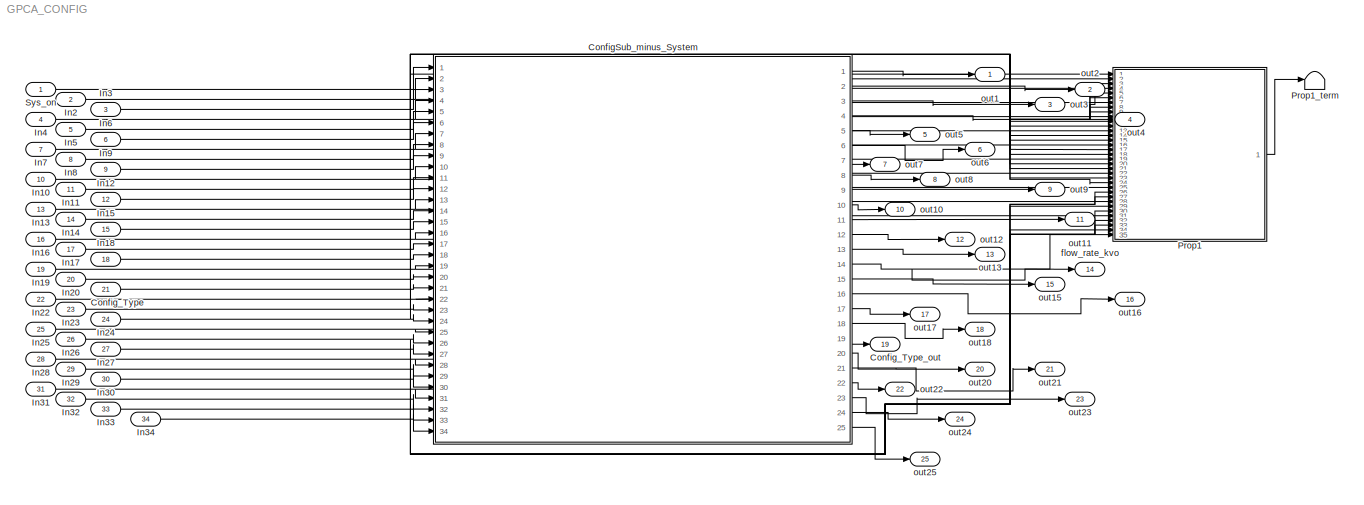
MODEL GPCA_CONFIG
KIND model
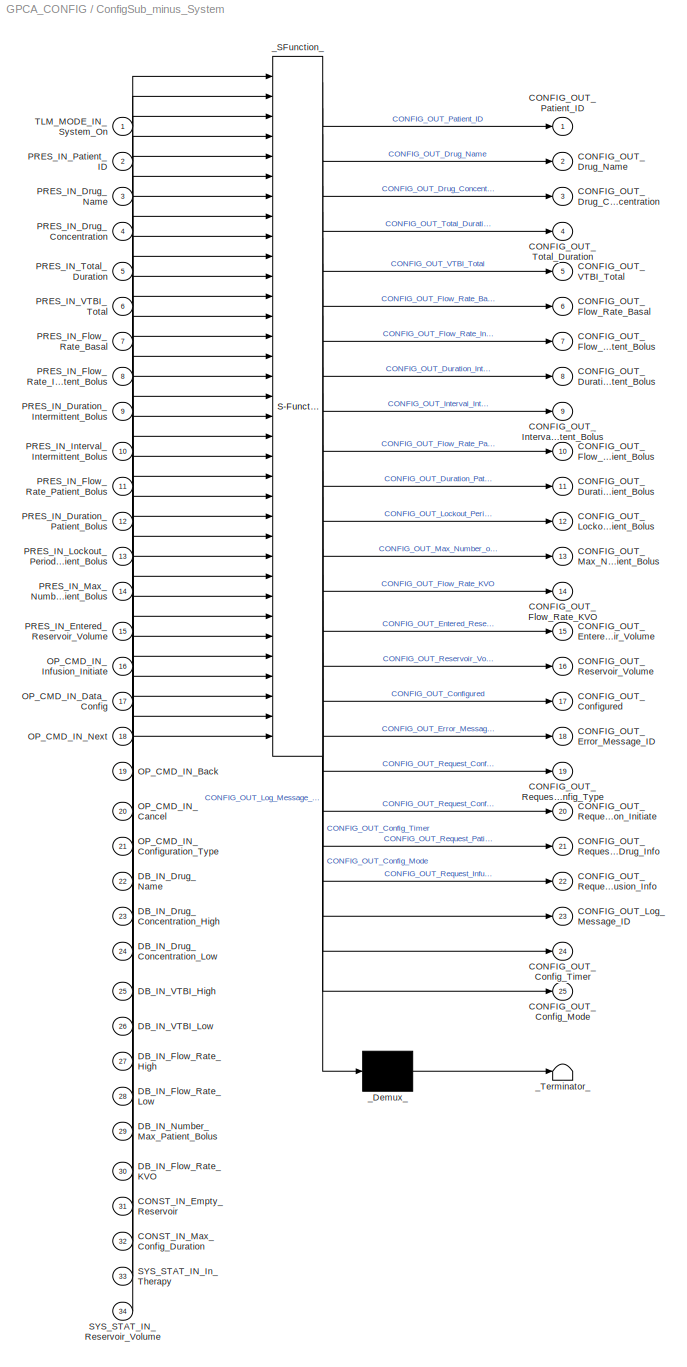
BLOCK [SubSystem] ConfigSub_minus_System
  ErrorFcn = Stateflow.Translate.translate
  PermitHierarchicalResolution = ExplicitOnly
  Ports = [34, 25]
  RequestExecContextInheritance = off
  SFBlockType = Chart
  SID = 35
  TreatAsAtomicUnit = on
  Variant = off
BLOCK [Outport] ConfigSub_minus_System/CONFIG_OUT_Config_Mode
  IconDisplay = Port number
  Port = 25
  SID = 35::384
BLOCK [Outport] ConfigSub_minus_System/CONFIG_OUT_Config_Timer
  IconDisplay = Port number
  Port = 24
  SID = 35::382
BLOCK [Outport] ConfigSub_minus_System/CONFIG_OUT_Configured
  IconDisplay = Port number
  Port = 17
  SID = 35::303
BLOCK [Outport] ConfigSub_minus_System/CONFIG_OUT_Drug_Concentration
  IconDisplay = Port number
  Port = 3
  SID = 35::351
BLOCK [Outport] ConfigSub_minus_System/CONFIG_OUT_Drug_Name
  IconDisplay = Port number
  Port = 2
  SID = 35::352
BLOCK [Outport] ConfigSub_minus_System/CONFIG_OUT_Duration_Intermittent_Bolus
  IconDisplay = Port number
  Port = 8
  SID = 35::367
BLOCK [Outport] ConfigSub_minus_System/CONFIG_OUT_Duration_Patient_Bolus
  IconDisplay = Port number
  Port = 11
  SID = 35::371
BLOCK [Outport] ConfigSub_minus_System/CONFIG_OUT_Entered_Reservoir_Volume
  IconDisplay = Port number
  Port = 15
  SID = 35::348
BLOCK [Outport] ConfigSub_minus_System/CONFIG_OUT_Error_Message_ID
  IconDisplay = Port number
  Port = 18
  SID = 35::335
BLOCK [Outport] ConfigSub_minus_System/CONFIG_OUT_Flow_Rate_Basal
  IconDisplay = Port number
  Port = 6
  SID = 35::353
BLOCK [Outport] ConfigSub_minus_System/CONFIG_OUT_Flow_Rate_Intermittent_Bolus
  IconDisplay = Port number
  Port = 7
  SID = 35::364
BLOCK [Outport] ConfigSub_minus_System/CONFIG_OUT_Flow_Rate_KVO
  IconDisplay = Port number
  Port = 14
  SID = 35::365
BLOCK [Outport] ConfigSub_minus_System/CONFIG_OUT_Flow_Rate_Patient_Bolus
  IconDisplay = Port number
  Port = 10
  SID = 35::366
BLOCK [Outport] ConfigSub_minus_System/CONFIG_OUT_Interval_Intermittent_Bolus
  IconDisplay = Port number
  Port = 9
  SID = 35::368
BLOCK [Outport] ConfigSub_minus_System/CONFIG_OUT_Lockout_Period_Patient_Bolus
  IconDisplay = Port number
  Port = 12
  SID = 35::369
BLOCK [Outport] ConfigSub_minus_System/CONFIG_OUT_Log_Message_ID
  IconDisplay = Port number
  Port = 23
  SID = 35::372
BLOCK [Outport] ConfigSub_minus_System/CONFIG_OUT_Max_Number_of_Patient_Bolus
  IconDisplay = Port number
  Port = 13
  SID = 35::370
BLOCK [Outport] ConfigSub_minus_System/CONFIG_OUT_Patient_ID
  IconDisplay = Port number
  SID = 35::349
BLOCK [Outport] ConfigSub_minus_System/CONFIG_OUT_Request_Config_Type
  IconDisplay = Port number
  Port = 19
  SID = 35::336
BLOCK [Outport] ConfigSub_minus_System/CONFIG_OUT_Request_Confirm_Infusion_Initiate
  IconDisplay = Port number
  Port = 20
  SID = 35::337
BLOCK [Outport] ConfigSub_minus_System/CONFIG_OUT_Request_Infusion_Info
  IconDisplay = Port number
  Port = 22
  SID = 35::338
BLOCK [Outport] ConfigSub_minus_System/CONFIG_OUT_Request_Patient_Drug_Info
  IconDisplay = Port number
  Port = 21
  SID = 35::339
BLOCK [Outport] ConfigSub_minus_System/CONFIG_OUT_Reservoir_Volume
  IconDisplay = Port number
  Port = 16
  SID = 35::355
BLOCK [Outport] ConfigSub_minus_System/CONFIG_OUT_Total_Duration
  IconDisplay = Port number
  Port = 4
  SID = 35::354
BLOCK [Outport] ConfigSub_minus_System/CONFIG_OUT_VTBI_Total
  IconDisplay = Port number
  Port = 5
  SID = 35::363
BLOCK [Inport] ConfigSub_minus_System/CONST_IN_Empty_Reservoir
  IconDisplay = Port number
  Port = 31
  SID = 35::197
BLOCK [Inport] ConfigSub_minus_System/CONST_IN_Max_Config_Duration
  IconDisplay = Port number
  Port = 32
  SID = 35::380
BLOCK [Inport] ConfigSub_minus_System/DB_IN_Drug_Concentration_High
  IconDisplay = Port number
  Port = 23
  SID = 35::309
BLOCK [Inport] ConfigSub_minus_System/DB_IN_Drug_Concentration_Low
  IconDisplay = Port number
  Port = 24
  SID = 35::310
BLOCK [Inport] ConfigSub_minus_System/DB_IN_Drug_Name
  IconDisplay = Port number
  Port = 22
  SID = 35::312
BLOCK [Inport] ConfigSub_minus_System/DB_IN_Flow_Rate_High
  IconDisplay = Port number
  Port = 27
  SID = 35::218
BLOCK [Inport] ConfigSub_minus_System/DB_IN_Flow_Rate_KVO
  IconDisplay = Port number
  Port = 30
  SID = 35::356
BLOCK [Inport] ConfigSub_minus_System/DB_IN_Flow_Rate_Low
  IconDisplay = Port number
  Port = 28
  SID = 35::219
BLOCK [Inport] ConfigSub_minus_System/DB_IN_Number_Max_Patient_Bolus
  IconDisplay = Port number
  Port = 29
  SID = 35::327
BLOCK [Inport] ConfigSub_minus_System/DB_IN_VTBI_High
  IconDisplay = Port number
  Port = 25
  SID = 35::330
BLOCK [Inport] ConfigSub_minus_System/DB_IN_VTBI_Low
  IconDisplay = Port number
  Port = 26
  SID = 35::331
BLOCK [Inport] ConfigSub_minus_System/OP_CMD_IN_Back
  IconDisplay = Port number
  Port = 19
  SID = 35::304
BLOCK [Inport] ConfigSub_minus_System/OP_CMD_IN_Cancel
  IconDisplay = Port number
  Port = 20
  SID = 35::305
BLOCK [Inport] ConfigSub_minus_System/OP_CMD_IN_Configuration_Type
  IconDisplay = Port number
  Port = 21
  SID = 35::306
BLOCK [Inport] ConfigSub_minus_System/OP_CMD_IN_Data_Config
  IconDisplay = Port number
  Port = 17
  SID = 35::307
BLOCK [Inport] ConfigSub_minus_System/OP_CMD_IN_Infusion_Initiate
  IconDisplay = Port number
  Port = 16
  SID = 35::320
BLOCK [Inport] ConfigSub_minus_System/OP_CMD_IN_Next
  IconDisplay = Port number
  Port = 18
  SID = 35::325
BLOCK [Inport] ConfigSub_minus_System/PRES_IN_Drug_Concentration
  IconDisplay = Port number
  Port = 4
  SID = 35::308
BLOCK [Inport] ConfigSub_minus_System/PRES_IN_Drug_Name
  IconDisplay = Port number
  Port = 3
  SID = 35::311
BLOCK [Inport] ConfigSub_minus_System/PRES_IN_Duration_Intermittent_Bolus
  IconDisplay = Port number
  Port = 9
  SID = 35::376
BLOCK [Inport] ConfigSub_minus_System/PRES_IN_Duration_Patient_Bolus
  IconDisplay = Port number
  Port = 12
  SID = 35::373
BLOCK [Inport] ConfigSub_minus_System/PRES_IN_Entered_Reservoir_Volume
  IconDisplay = Port number
  Port = 15
  SID = 35::385
BLOCK [Inport] ConfigSub_minus_System/PRES_IN_Flow_Rate_Basal
  IconDisplay = Port number
  Port = 7
  SID = 35::316
BLOCK [Inport] ConfigSub_minus_System/PRES_IN_Flow_Rate_Intermittent_Bolus
  IconDisplay = Port number
  Port = 8
  SID = 35::377
BLOCK [Inport] ConfigSub_minus_System/PRES_IN_Flow_Rate_Patient_Bolus
  IconDisplay = Port number
  Port = 11
  SID = 35::378
BLOCK [Inport] ConfigSub_minus_System/PRES_IN_Interval_Intermittent_Bolus
  IconDisplay = Port number
  Port = 10
  SID = 35::322
BLOCK [Inport] ConfigSub_minus_System/PRES_IN_Lockout_Period_Patient_Bolus
  IconDisplay = Port number
  Port = 13
  SID = 35::375
BLOCK [Inport] ConfigSub_minus_System/PRES_IN_Max_Number_of_Patient_Bolus
  IconDisplay = Port number
  Port = 14
  SID = 35::374
BLOCK [Inport] ConfigSub_minus_System/PRES_IN_Patient_ID
  IconDisplay = Port number
  Port = 2
  SID = 35::328
BLOCK [Inport] ConfigSub_minus_System/PRES_IN_Total_Duration
  IconDisplay = Port number
  Port = 5
  SID = 35::315
BLOCK [Inport] ConfigSub_minus_System/PRES_IN_VTBI_Total
  IconDisplay = Port number
  Port = 6
  SID = 35::358
BLOCK [Inport] ConfigSub_minus_System/SYS_STAT_IN_In_Therapy
  IconDisplay = Port number
  Port = 33
  SID = 35::301
BLOCK [Inport] ConfigSub_minus_System/SYS_STAT_IN_Reservoir_Volume
  IconDisplay = Port number
  Port = 34
  SID = 35::381
BLOCK [Inport] ConfigSub_minus_System/TLM_MODE_IN_System_On
  IconDisplay = Port number
  SID = 35::359
BLOCK [Demux] ConfigSub_minus_System/_Demux_
  Outputs = 1
  Ports = [1, 1]
  SID = 35::390
BLOCK [S-Function] ConfigSub_minus_System/_SFunction_
  EnableBusSupport = on
  FunctionName = sf_sfun
  Parameters = step_size
  PortCounts = [34 26]
  Ports = [34, 26]
  SFcnIsStateOwnerBlock = off
  SFunctionDeploymentMode = off
  SID = 35::389
  Tag = Stateflow S-Function GPCA_CONFIG 2
BLOCK [Terminator] ConfigSub_minus_System/_Terminator_
  SID = 35::391
BLOCK [Inport] Config_Type
  IconDisplay = Port number
  Port = 21
  SID = 21
BLOCK [Outport] Config_Type_out
  IconDisplay = Port number
  Port = 19
  SID = 54
BLOCK [Inport] In10
  IconDisplay = Port number
  Port = 10
  SID = 10
BLOCK [Inport] In11
  IconDisplay = Port number
  Port = 11
  SID = 11
BLOCK [Inport] In12
  IconDisplay = Port number
  Port = 12
  SID = 12
BLOCK [Inport] In13
  IconDisplay = Port number
  Port = 13
  SID = 13
BLOCK [Inport] In14
  IconDisplay = Port number
  Port = 14
  SID = 14
BLOCK [Inport] In15
  IconDisplay = Port number
  Port = 15
  SID = 15
BLOCK [Inport] In16
  IconDisplay = Port number
  Port = 16
  SID = 16
BLOCK [Inport] In17
  IconDisplay = Port number
  Port = 17
  SID = 17
BLOCK [Inport] In18
  IconDisplay = Port number
  Port = 18
  SID = 18
BLOCK [Inport] In19
  IconDisplay = Port number
  Port = 19
  SID = 19
BLOCK [Inport] In2
  IconDisplay = Port number
  Port = 2
  SID = 2
BLOCK [Inport] In20
  IconDisplay = Port number
  Port = 20
  SID = 20
BLOCK [Inport] In22
  IconDisplay = Port number
  Port = 22
  SID = 22
BLOCK [Inport] In23
  IconDisplay = Port number
  Port = 23
  SID = 23
BLOCK [Inport] In24
  IconDisplay = Port number
  Port = 24
  SID = 24
BLOCK [Inport] In25
  IconDisplay = Port number
  Port = 25
  SID = 25
BLOCK [Inport] In26
  IconDisplay = Port number
  Port = 26
  SID = 26
BLOCK [Inport] In27
  IconDisplay = Port number
  Port = 27
  SID = 27
BLOCK [Inport] In28
  IconDisplay = Port number
  Port = 28
  SID = 28
BLOCK [Inport] In29
  IconDisplay = Port number
  Port = 29
  SID = 29
BLOCK [Inport] In3
  IconDisplay = Port number
  Port = 3
  SID = 3
BLOCK [Inport] In30
  IconDisplay = Port number
  Port = 30
  SID = 30
BLOCK [Inport] In31
  IconDisplay = Port number
  Port = 31
  SID = 31
BLOCK [Inport] In32
  IconDisplay = Port number
  Port = 32
  SID = 32
BLOCK [Inport] In33
  IconDisplay = Port number
  Port = 33
  SID = 33
BLOCK [Inport] In34
  IconDisplay = Port number
  Port = 34
  SID = 34
BLOCK [Inport] In4
  IconDisplay = Port number
  Port = 4
  SID = 4
BLOCK [Inport] In5
  IconDisplay = Port number
  Port = 5
  SID = 5
BLOCK [Inport] In6
  IconDisplay = Port number
  Port = 6
  SID = 6
BLOCK [Inport] In7
  IconDisplay = Port number
  Port = 7
  SID = 7
BLOCK [Inport] In8
  IconDisplay = Port number
  Port = 8
  SID = 8
BLOCK [Inport] In9
  IconDisplay = Port number
  Port = 9
  SID = 9
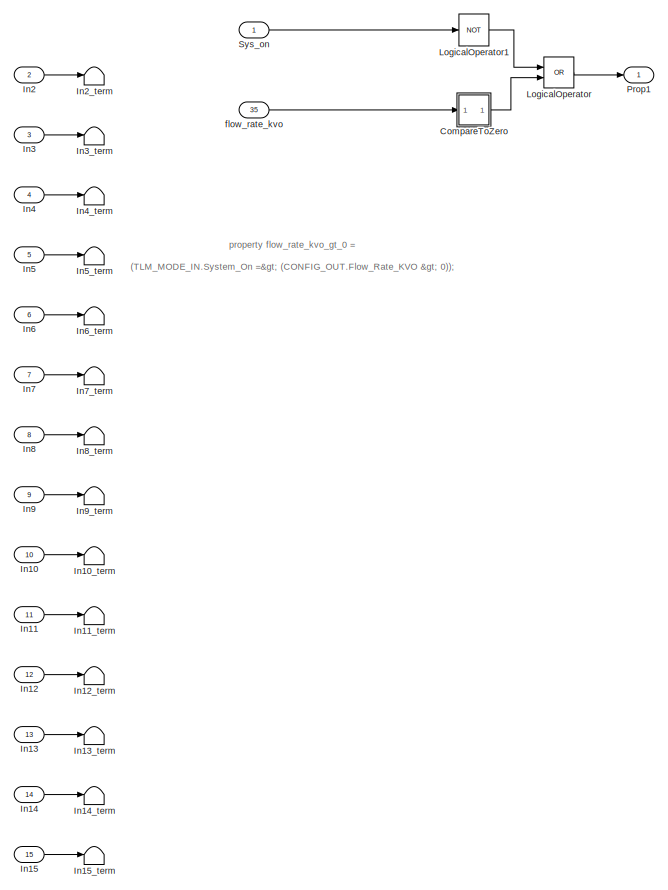
[diagram: Prop1 - part 1/2, full width, top band]
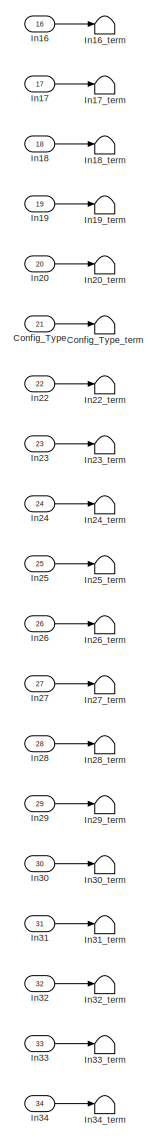
[diagram: Prop1 - part 2/2, bottom left region]
BLOCK [SubSystem] Prop1
  Ports = [35, 1]
  RequestExecContextInheritance = off
  SID = 61
  TreatAsAtomicUnit = on
  Variant = off
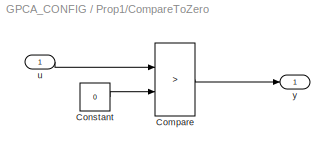
BLOCK [SubSystem] Prop1/CompareToZero
  AncestorBlock = simulink/Logic and Bit\nOperations/Compare\nTo Zero
  Ports = [1, 1]
  RequestExecContextInheritance = off
  SID = 136
  TreatAsAtomicUnit = on
  Variant = off
BLOCK [RelationalOperator] Prop1/CompareToZero/Compare
  Operator = >
  OutDataTypeStr = boolean
  Ports = [2, 1]
  SID = 136:2
BLOCK [Constant] Prop1/CompareToZero/Constant
  DisableCoverage = on
  OutDataTypeStr = Inherit: Inherit via back propagation
  PreserveConstantTs = on
  SID = 136:3
  Value = 0
BLOCK [Inport] Prop1/CompareToZero/u
  IconDisplay = Port number
  SID = 136:1
BLOCK [Outport] Prop1/CompareToZero/y
  IconDisplay = Port number
  SID = 136:5
BLOCK [Inport] Prop1/Config_Type
  IconDisplay = Port number
  Port = 21
  SID = 102
BLOCK [Terminator] Prop1/Config_Type_term
  SID = 103
BLOCK [Inport] Prop1/In10
  IconDisplay = Port number
  Port = 10
  SID = 80
BLOCK [Terminator] Prop1/In10_term
  SID = 81
BLOCK [Inport] Prop1/In11
  IconDisplay = Port number
  Port = 11
  SID = 82
BLOCK [Terminator] Prop1/In11_term
  SID = 83
BLOCK [Inport] Prop1/In12
  IconDisplay = Port number
  Port = 12
  SID = 84
BLOCK [Terminator] Prop1/In12_term
  SID = 85
BLOCK [Inport] Prop1/In13
  IconDisplay = Port number
  Port = 13
  SID = 86
BLOCK [Terminator] Prop1/In13_term
  SID = 87
BLOCK [Inport] Prop1/In14
  IconDisplay = Port number
  Port = 14
  SID = 88
BLOCK [Terminator] Prop1/In14_term
  SID = 89
BLOCK [Inport] Prop1/In15
  IconDisplay = Port number
  Port = 15
  SID = 90
BLOCK [Terminator] Prop1/In15_term
  SID = 91
BLOCK [Inport] Prop1/In16
  IconDisplay = Port number
  Port = 16
  SID = 92
BLOCK [Terminator] Prop1/In16_term
  SID = 93
BLOCK [Inport] Prop1/In17
  IconDisplay = Port number
  Port = 17
  SID = 94
BLOCK [Terminator] Prop1/In17_term
  SID = 95
BLOCK [Inport] Prop1/In18
  IconDisplay = Port number
  Port = 18
  SID = 96
BLOCK [Terminator] Prop1/In18_term
  SID = 97
BLOCK [Inport] Prop1/In19
  IconDisplay = Port number
  Port = 19
  SID = 98
BLOCK [Terminator] Prop1/In19_term
  SID = 99
BLOCK [Inport] Prop1/In2
  IconDisplay = Port number
  Port = 2
  SID = 64
BLOCK [Inport] Prop1/In20
  IconDisplay = Port number
  Port = 20
  SID = 100
BLOCK [Terminator] Prop1/In20_term
  SID = 101
BLOCK [Inport] Prop1/In22
  IconDisplay = Port number
  Port = 22
  SID = 104
BLOCK [Terminator] Prop1/In22_term
  SID = 105
BLOCK [Inport] Prop1/In23
  IconDisplay = Port number
  Port = 23
  SID = 106
BLOCK [Terminator] Prop1/In23_term
  SID = 107
BLOCK [Inport] Prop1/In24
  IconDisplay = Port number
  Port = 24
  SID = 108
BLOCK [Terminator] Prop1/In24_term
  SID = 109
BLOCK [Inport] Prop1/In25
  IconDisplay = Port number
  Port = 25
  SID = 110
BLOCK [Terminator] Prop1/In25_term
  SID = 111
BLOCK [Inport] Prop1/In26
  IconDisplay = Port number
  Port = 26
  SID = 112
BLOCK [Terminator] Prop1/In26_term
  SID = 113
BLOCK [Inport] Prop1/In27
  IconDisplay = Port number
  Port = 27
  SID = 114
BLOCK [Terminator] Prop1/In27_term
  SID = 115
BLOCK [Inport] Prop1/In28
  IconDisplay = Port number
  Port = 28
  SID = 116
BLOCK [Terminator] Prop1/In28_term
  SID = 117
BLOCK [Inport] Prop1/In29
  IconDisplay = Port number
  Port = 29
  SID = 118
BLOCK [Terminator] Prop1/In29_term
  SID = 119
BLOCK [Terminator] Prop1/In2_term
  SID = 65
BLOCK [Inport] Prop1/In3
  IconDisplay = Port number
  Port = 3
  SID = 66
BLOCK [Inport] Prop1/In30
  IconDisplay = Port number
  Port = 30
  SID = 120
BLOCK [Terminator] Prop1/In30_term
  SID = 121
BLOCK [Inport] Prop1/In31
  IconDisplay = Port number
  Port = 31
  SID = 122
BLOCK [Terminator] Prop1/In31_term
  SID = 123
BLOCK [Inport] Prop1/In32
  IconDisplay = Port number
  Port = 32
  SID = 124
BLOCK [Terminator] Prop1/In32_term
  SID = 125
BLOCK [Inport] Prop1/In33
  IconDisplay = Port number
  Port = 33
  SID = 126
BLOCK [Terminator] Prop1/In33_term
  SID = 127
BLOCK [Inport] Prop1/In34
  IconDisplay = Port number
  Port = 34
  SID = 128
BLOCK [Terminator] Prop1/In34_term
  SID = 129
BLOCK [Terminator] Prop1/In3_term
  SID = 67
BLOCK [Inport] Prop1/In4
  IconDisplay = Port number
  Port = 4
  SID = 68
BLOCK [Terminator] Prop1/In4_term
  SID = 69
BLOCK [Inport] Prop1/In5
  IconDisplay = Port number
  Port = 5
  SID = 70
BLOCK [Terminator] Prop1/In5_term
  SID = 71
BLOCK [Inport] Prop1/In6
  IconDisplay = Port number
  Port = 6
  SID = 72
BLOCK [Terminator] Prop1/In6_term
  SID = 73
BLOCK [Inport] Prop1/In7
  IconDisplay = Port number
  Port = 7
  SID = 74
BLOCK [Terminator] Prop1/In7_term
  SID = 75
BLOCK [Inport] Prop1/In8
  IconDisplay = Port number
  Port = 8
  SID = 76
BLOCK [Terminator] Prop1/In8_term
  SID = 77
BLOCK [Inport] Prop1/In9
  IconDisplay = Port number
  Port = 9
  SID = 78
BLOCK [Terminator] Prop1/In9_term
  SID = 79
BLOCK [Logic] Prop1/LogicalOperator
  AllPortsSameDT = off
  Operator = OR
  OutDataTypeStr = boolean
  Ports = [2, 1]
  SID = 134
BLOCK [Logic] Prop1/LogicalOperator1
  AllPortsSameDT = off
  Operator = NOT
  OutDataTypeStr = boolean
  Ports = [1, 1]
  SID = 135
BLOCK [Outport] Prop1/Prop1
  IconDisplay = Port number
  SID = 132
BLOCK [Inport] Prop1/Sys_on
  IconDisplay = Port number
  SID = 62
BLOCK [Inport] Prop1/flow_rate_kvo
  IconDisplay = Port number
  Port = 35
  SID = 130
BLOCK [Terminator] Prop1_term
  SID = 133
BLOCK [Inport] Sys_on
  IconDisplay = Port number
  SID = 1
BLOCK [Outport] flow_rate_kvo
  IconDisplay = Port number
  Port = 14
  SID = 49
BLOCK [Outport] out1
  IconDisplay = Port number
  SID = 36
BLOCK [Outport] out10
  IconDisplay = Port number
  Port = 10
  SID = 45
BLOCK [Outport] out11
  IconDisplay = Port number
  Port = 11
  SID = 46
BLOCK [Outport] out12
  IconDisplay = Port number
  Port = 12
  SID = 47
BLOCK [Outport] out13
  IconDisplay = Port number
  Port = 13
  SID = 48
BLOCK [Outport] out15
  IconDisplay = Port number
  Port = 15
  SID = 50
BLOCK [Outport] out16
  IconDisplay = Port number
  Port = 16
  SID = 51
BLOCK [Outport] out17
  IconDisplay = Port number
  Port = 17
  SID = 52
BLOCK [Outport] out18
  IconDisplay = Port number
  Port = 18
  SID = 53
BLOCK [Outport] out2
  IconDisplay = Port number
  Port = 2
  SID = 37
BLOCK [Outport] out20
  IconDisplay = Port number
  Port = 20
  SID = 55
BLOCK [Outport] out21
  IconDisplay = Port number
  Port = 21
  SID = 56
BLOCK [Outport] out22
  IconDisplay = Port number
  Port = 22
  SID = 57
BLOCK [Outport] out23
  IconDisplay = Port number
  Port = 23
  SID = 58
BLOCK [Outport] out24
  IconDisplay = Port number
  Port = 24
  SID = 59
BLOCK [Outport] out25
  IconDisplay = Port number
  Port = 25
  SID = 60
BLOCK [Outport] out3
  IconDisplay = Port number
  Port = 3
  SID = 38
BLOCK [Outport] out4
  IconDisplay = Port number
  Port = 4
  SID = 39
BLOCK [Outport] out5
  IconDisplay = Port number
  Port = 5
  SID = 40
BLOCK [Outport] out6
  IconDisplay = Port number
  Port = 6
  SID = 41
BLOCK [Outport] out7
  IconDisplay = Port number
  Port = 7
  SID = 42
BLOCK [Outport] out8
  IconDisplay = Port number
  Port = 8
  SID = 43
BLOCK [Outport] out9
  IconDisplay = Port number
  Port = 9
  SID = 44
ANNOTATION Prop1: \n \n property flow_rate_kvo_gt_0 = \n (TLM_MODE_IN.System_On => (CONFIG_OUT.Flow_Rate_KVO > 0)); \n \n guarantee "flow_rate_kvo_gt_0": flow_rate_kvo_gt_0;
LINE ConfigSub_minus_System/CONST_IN_Empty_Reservoir:1 -> ConfigSub_minus_System/_SFunction_:31
LINE ConfigSub_minus_System/CONST_IN_Max_Config_Duration:1 -> ConfigSub_minus_System/_SFunction_:32
LINE ConfigSub_minus_System/DB_IN_Drug_Concentration_High:1 -> ConfigSub_minus_System/_SFunction_:23
LINE ConfigSub_minus_System/DB_IN_Drug_Concentration_Low:1 -> ConfigSub_minus_System/_SFunction_:24
LINE ConfigSub_minus_System/DB_IN_Drug_Name:1 -> ConfigSub_minus_System/_SFunction_:22
LINE ConfigSub_minus_System/DB_IN_Flow_Rate_High:1 -> ConfigSub_minus_System/_SFunction_:27
LINE ConfigSub_minus_System/DB_IN_Flow_Rate_KVO:1 -> ConfigSub_minus_System/_SFunction_:30
LINE ConfigSub_minus_System/DB_IN_Flow_Rate_Low:1 -> ConfigSub_minus_System/_SFunction_:28
LINE ConfigSub_minus_System/DB_IN_Number_Max_Patient_Bolus:1 -> ConfigSub_minus_System/_SFunction_:29
LINE ConfigSub_minus_System/DB_IN_VTBI_High:1 -> ConfigSub_minus_System/_SFunction_:25
LINE ConfigSub_minus_System/DB_IN_VTBI_Low:1 -> ConfigSub_minus_System/_SFunction_:26
LINE ConfigSub_minus_System/OP_CMD_IN_Back:1 -> ConfigSub_minus_System/_SFunction_:19
LINE ConfigSub_minus_System/OP_CMD_IN_Cancel:1 -> ConfigSub_minus_System/_SFunction_:20
LINE ConfigSub_minus_System/OP_CMD_IN_Configuration_Type:1 -> ConfigSub_minus_System/_SFunction_:21
LINE ConfigSub_minus_System/OP_CMD_IN_Data_Config:1 -> ConfigSub_minus_System/_SFunction_:17
LINE ConfigSub_minus_System/OP_CMD_IN_Infusion_Initiate:1 -> ConfigSub_minus_System/_SFunction_:16
LINE ConfigSub_minus_System/OP_CMD_IN_Next:1 -> ConfigSub_minus_System/_SFunction_:18
LINE ConfigSub_minus_System/PRES_IN_Drug_Concentration:1 -> ConfigSub_minus_System/_SFunction_:4
LINE ConfigSub_minus_System/PRES_IN_Drug_Name:1 -> ConfigSub_minus_System/_SFunction_:3
LINE ConfigSub_minus_System/PRES_IN_Duration_Intermittent_Bolus:1 -> ConfigSub_minus_System/_SFunction_:9
LINE ConfigSub_minus_System/PRES_IN_Duration_Patient_Bolus:1 -> ConfigSub_minus_System/_SFunction_:12
LINE ConfigSub_minus_System/PRES_IN_Entered_Reservoir_Volume:1 -> ConfigSub_minus_System/_SFunction_:15
LINE ConfigSub_minus_System/PRES_IN_Flow_Rate_Basal:1 -> ConfigSub_minus_System/_SFunction_:7
LINE ConfigSub_minus_System/PRES_IN_Flow_Rate_Intermittent_Bolus:1 -> ConfigSub_minus_System/_SFunction_:8
LINE ConfigSub_minus_System/PRES_IN_Flow_Rate_Patient_Bolus:1 -> ConfigSub_minus_System/_SFunction_:11
LINE ConfigSub_minus_System/PRES_IN_Interval_Intermittent_Bolus:1 -> ConfigSub_minus_System/_SFunction_:10
LINE ConfigSub_minus_System/PRES_IN_Lockout_Period_Patient_Bolus:1 -> ConfigSub_minus_System/_SFunction_:13
LINE ConfigSub_minus_System/PRES_IN_Max_Number_of_Patient_Bolus:1 -> ConfigSub_minus_System/_SFunction_:14
LINE ConfigSub_minus_System/PRES_IN_Patient_ID:1 -> ConfigSub_minus_System/_SFunction_:2
LINE ConfigSub_minus_System/PRES_IN_Total_Duration:1 -> ConfigSub_minus_System/_SFunction_:5
LINE ConfigSub_minus_System/PRES_IN_VTBI_Total:1 -> ConfigSub_minus_System/_SFunction_:6
LINE ConfigSub_minus_System/SYS_STAT_IN_In_Therapy:1 -> ConfigSub_minus_System/_SFunction_:33
LINE ConfigSub_minus_System/SYS_STAT_IN_Reservoir_Volume:1 -> ConfigSub_minus_System/_SFunction_:34
LINE ConfigSub_minus_System/TLM_MODE_IN_System_On:1 -> ConfigSub_minus_System/_SFunction_:1
LINE ConfigSub_minus_System/_Demux_:1 -> ConfigSub_minus_System/_Terminator_:1
LINE ConfigSub_minus_System/_SFunction_:1 -> ConfigSub_minus_System/_Demux_:1
LINE ConfigSub_minus_System/_SFunction_:10 -> ConfigSub_minus_System/CONFIG_OUT_Interval_Intermittent_Bolus:1
LINE ConfigSub_minus_System/_SFunction_:11 -> ConfigSub_minus_System/CONFIG_OUT_Flow_Rate_Patient_Bolus:1
LINE ConfigSub_minus_System/_SFunction_:12 -> ConfigSub_minus_System/CONFIG_OUT_Duration_Patient_Bolus:1
LINE ConfigSub_minus_System/_SFunction_:13 -> ConfigSub_minus_System/CONFIG_OUT_Lockout_Period_Patient_Bolus:1
LINE ConfigSub_minus_System/_SFunction_:14 -> ConfigSub_minus_System/CONFIG_OUT_Max_Number_of_Patient_Bolus:1
LINE ConfigSub_minus_System/_SFunction_:15 -> ConfigSub_minus_System/CONFIG_OUT_Flow_Rate_KVO:1
LINE ConfigSub_minus_System/_SFunction_:16 -> ConfigSub_minus_System/CONFIG_OUT_Entered_Reservoir_Volume:1
LINE ConfigSub_minus_System/_SFunction_:17 -> ConfigSub_minus_System/CONFIG_OUT_Reservoir_Volume:1
LINE ConfigSub_minus_System/_SFunction_:18 -> ConfigSub_minus_System/CONFIG_OUT_Configured:1
LINE ConfigSub_minus_System/_SFunction_:19 -> ConfigSub_minus_System/CONFIG_OUT_Error_Message_ID:1
LINE ConfigSub_minus_System/_SFunction_:2 -> ConfigSub_minus_System/CONFIG_OUT_Patient_ID:1
LINE ConfigSub_minus_System/_SFunction_:20 -> ConfigSub_minus_System/CONFIG_OUT_Request_Config_Type:1
LINE ConfigSub_minus_System/_SFunction_:21 -> ConfigSub_minus_System/CONFIG_OUT_Request_Confirm_Infusion_Initiate:1
LINE ConfigSub_minus_System/_SFunction_:22 -> ConfigSub_minus_System/CONFIG_OUT_Request_Patient_Drug_Info:1
LINE ConfigSub_minus_System/_SFunction_:23 -> ConfigSub_minus_System/CONFIG_OUT_Request_Infusion_Info:1
LINE ConfigSub_minus_System/_SFunction_:24 -> ConfigSub_minus_System/CONFIG_OUT_Log_Message_ID:1
LINE ConfigSub_minus_System/_SFunction_:25 -> ConfigSub_minus_System/CONFIG_OUT_Config_Timer:1
LINE ConfigSub_minus_System/_SFunction_:26 -> ConfigSub_minus_System/CONFIG_OUT_Config_Mode:1
LINE ConfigSub_minus_System/_SFunction_:3 -> ConfigSub_minus_System/CONFIG_OUT_Drug_Name:1
LINE ConfigSub_minus_System/_SFunction_:4 -> ConfigSub_minus_System/CONFIG_OUT_Drug_Concentration:1
LINE ConfigSub_minus_System/_SFunction_:5 -> ConfigSub_minus_System/CONFIG_OUT_Total_Duration:1
LINE ConfigSub_minus_System/_SFunction_:6 -> ConfigSub_minus_System/CONFIG_OUT_VTBI_Total:1
LINE ConfigSub_minus_System/_SFunction_:7 -> ConfigSub_minus_System/CONFIG_OUT_Flow_Rate_Basal:1
LINE ConfigSub_minus_System/_SFunction_:8 -> ConfigSub_minus_System/CONFIG_OUT_Flow_Rate_Intermittent_Bolus:1
LINE ConfigSub_minus_System/_SFunction_:9 -> ConfigSub_minus_System/CONFIG_OUT_Duration_Intermittent_Bolus:1
LINE ConfigSub_minus_System:1 -> out1:1
LINE ConfigSub_minus_System:10 -> out10:1
LINE ConfigSub_minus_System:11 -> out11:1
LINE ConfigSub_minus_System:12 -> out12:1
LINE ConfigSub_minus_System:13 -> out13:1
NET ConfigSub_minus_System:14 -> Prop1:35, flow_rate_kvo:1
LINE ConfigSub_minus_System:15 -> out15:1
LINE ConfigSub_minus_System:16 -> out16:1
LINE ConfigSub_minus_System:17 -> out17:1
LINE ConfigSub_minus_System:18 -> out18:1
LINE ConfigSub_minus_System:19 -> Config_Type_out:1
LINE ConfigSub_minus_System:2 -> out2:1
LINE ConfigSub_minus_System:20 -> out20:1
LINE ConfigSub_minus_System:21 -> out21:1
LINE ConfigSub_minus_System:22 -> out22:1
LINE ConfigSub_minus_System:23 -> out23:1
LINE ConfigSub_minus_System:24 -> out24:1
LINE ConfigSub_minus_System:25 -> out25:1
LINE ConfigSub_minus_System:3 -> out3:1
LINE ConfigSub_minus_System:4 -> out4:1
LINE ConfigSub_minus_System:5 -> out5:1
LINE ConfigSub_minus_System:6 -> out6:1
LINE ConfigSub_minus_System:7 -> out7:1
LINE ConfigSub_minus_System:8 -> out8:1
LINE ConfigSub_minus_System:9 -> out9:1
NET Config_Type:1 -> ConfigSub_minus_System:21, Prop1:21
NET In10:1 -> ConfigSub_minus_System:10, Prop1:10
NET In11:1 -> ConfigSub_minus_System:11, Prop1:11
NET In12:1 -> ConfigSub_minus_System:12, Prop1:12
NET In13:1 -> ConfigSub_minus_System:13, Prop1:13
NET In14:1 -> ConfigSub_minus_System:14, Prop1:14
NET In15:1 -> ConfigSub_minus_System:15, Prop1:15
NET In16:1 -> ConfigSub_minus_System:16, Prop1:16
NET In17:1 -> ConfigSub_minus_System:17, Prop1:17
NET In18:1 -> ConfigSub_minus_System:18, Prop1:18
NET In19:1 -> ConfigSub_minus_System:19, Prop1:19
NET In20:1 -> ConfigSub_minus_System:20, Prop1:20
NET In22:1 -> ConfigSub_minus_System:22, Prop1:22
NET In23:1 -> ConfigSub_minus_System:23, Prop1:23
NET In24:1 -> ConfigSub_minus_System:24, Prop1:24
NET In25:1 -> ConfigSub_minus_System:25, Prop1:25
NET In26:1 -> ConfigSub_minus_System:26, Prop1:26
NET In27:1 -> ConfigSub_minus_System:27, Prop1:27
NET In28:1 -> ConfigSub_minus_System:28, Prop1:28
NET In29:1 -> ConfigSub_minus_System:29, Prop1:29
NET In2:1 -> ConfigSub_minus_System:2, Prop1:2
NET In30:1 -> ConfigSub_minus_System:30, Prop1:30
NET In31:1 -> ConfigSub_minus_System:31, Prop1:31
NET In32:1 -> ConfigSub_minus_System:32, Prop1:32
NET In33:1 -> ConfigSub_minus_System:33, Prop1:33
NET In34:1 -> ConfigSub_minus_System:34, Prop1:34
NET In3:1 -> ConfigSub_minus_System:3, Prop1:3
NET In4:1 -> ConfigSub_minus_System:4, Prop1:4
NET In5:1 -> ConfigSub_minus_System:5, Prop1:5
NET In6:1 -> ConfigSub_minus_System:6, Prop1:6
NET In7:1 -> ConfigSub_minus_System:7, Prop1:7
NET In8:1 -> ConfigSub_minus_System:8, Prop1:8
NET In9:1 -> ConfigSub_minus_System:9, Prop1:9
LINE Prop1/CompareToZero/Compare:1 -> Prop1/CompareToZero/y:1
LINE Prop1/CompareToZero/Constant:1 -> Prop1/CompareToZero/Compare:2
LINE Prop1/CompareToZero/u:1 -> Prop1/CompareToZero/Compare:1
LINE Prop1/CompareToZero:1 -> Prop1/LogicalOperator:2
LINE Prop1/Config_Type:1 -> Prop1/Config_Type_term:1
LINE Prop1/In10:1 -> Prop1/In10_term:1
LINE Prop1/In11:1 -> Prop1/In11_term:1
LINE Prop1/In12:1 -> Prop1/In12_term:1
LINE Prop1/In13:1 -> Prop1/In13_term:1
LINE Prop1/In14:1 -> Prop1/In14_term:1
LINE Prop1/In15:1 -> Prop1/In15_term:1
LINE Prop1/In16:1 -> Prop1/In16_term:1
LINE Prop1/In17:1 -> Prop1/In17_term:1
LINE Prop1/In18:1 -> Prop1/In18_term:1
LINE Prop1/In19:1 -> Prop1/In19_term:1
LINE Prop1/In20:1 -> Prop1/In20_term:1
LINE Prop1/In22:1 -> Prop1/In22_term:1
LINE Prop1/In23:1 -> Prop1/In23_term:1
LINE Prop1/In24:1 -> Prop1/In24_term:1
LINE Prop1/In25:1 -> Prop1/In25_term:1
LINE Prop1/In26:1 -> Prop1/In26_term:1
LINE Prop1/In27:1 -> Prop1/In27_term:1
LINE Prop1/In28:1 -> Prop1/In28_term:1
LINE Prop1/In29:1 -> Prop1/In29_term:1
LINE Prop1/In2:1 -> Prop1/In2_term:1
LINE Prop1/In30:1 -> Prop1/In30_term:1
LINE Prop1/In31:1 -> Prop1/In31_term:1
LINE Prop1/In32:1 -> Prop1/In32_term:1
LINE Prop1/In33:1 -> Prop1/In33_term:1
LINE Prop1/In34:1 -> Prop1/In34_term:1
LINE Prop1/In3:1 -> Prop1/In3_term:1
LINE Prop1/In4:1 -> Prop1/In4_term:1
LINE Prop1/In5:1 -> Prop1/In5_term:1
LINE Prop1/In6:1 -> Prop1/In6_term:1
LINE Prop1/In7:1 -> Prop1/In7_term:1
LINE Prop1/In8:1 -> Prop1/In8_term:1
LINE Prop1/In9:1 -> Prop1/In9_term:1
LINE Prop1/LogicalOperator1:1 -> Prop1/LogicalOperator:1
LINE Prop1/LogicalOperator:1 -> Prop1/Prop1:1
LINE Prop1/Sys_on:1 -> Prop1/LogicalOperator1:1
LINE Prop1/flow_rate_kvo:1 -> Prop1/CompareToZero:1
LINE Prop1:1 -> Prop1_term:1
NET Sys_on:1 -> ConfigSub_minus_System:1, Prop1:1
note: NET lines group one-source signal fan-out (src -> all destinations, sorted); 1:1 wires keep LINE
CHART ConfigSub_minus_System states=27 transitions=56
  STATE_LABEL 'Configuration\\n\\n'
  STATE_LABEL 'Prescription_Config\\nentry: CONFIG_OUT_Config_Timer = CONFIG_OUT_Config_Timer+ 1;\\nCONFIG_OUT_Reservoir_Volume=SYS_STAT_IN_Reservoir_Volume;\\nCONFIG_OUT_Config_Mode=2;\\ncheckIfPrescriptionAvailable();\\nduring: CONFIG_OUT_Config_Timer= CONFIG_OUT_Config_Timer +1 ;\\nCONFIG_OUT_Reservoir_Volume=SYS_STAT_IN_Reservoir_Volume;\\ncheckIfPrescriptionAvailable();\\nexit: CONFIG_OUT_Config_Timer = CONFIG_OUT_...<+18ch>'
  STATE_LABEL 'Patient_Drug_info\\nentry: CONFIG_OUT_Config_Mode=3;\\nduring: CONFIG_OUT_Config_Mode=3;\\nexit: CONFIG_OUT_Config_Mode=3;'
  STATE_LABEL 'GetParam\\nentry:t_PatientID=PRES_IN_Patient_ID;\\nt_DrugName=PRES_IN_Drug_Name;\\nt_DrugConcentration=PRES_IN_Drug_Concentration;\\nt_EnteredReservoirVolume = PRES_IN_Entered_Reservoir_Volume;\\nCONFIG_OUT_Request_Patient_Drug_Info=0;'
  STATE_LABEL 'DisplayParam\\nentry:CONFIG_OUT_Request_Patient_Drug_Info=1;\\nvalidate=0;'
  STATE_LABEL 'GetDrugSafeValues\\nentry:CONFIG_OUT_Drug_Name=t_DrugName;\\n value = CheckDrugName(t_DrugName, DB_IN_Drug_Name);\\nduring:value = CheckDrugName(t_DrugName, DB_IN_Drug_Name);'
  STATE_LABEL 'DisplayErrorMessage\\nentry:CONFIG_OUT_Error_Message_ID=5;'
  STATE_LABEL 'ValidateParam\\nentry:validate= checkPatient_DrugParam(t_DrugConcentration, DB_IN_Drug_Concentration_Low, DB_IN_Drug_Concentration_High, t_EnteredReservoirVolume, CONST_IN_Empty_Reservoir);\\nCONFIG_OUT_Request_Patient_Drug_Info=0;\\nvalue=0;\\nduring:validate= checkPatient_DrugParam(t_DrugConcentration, DB_IN_Drug_Concentration_Low, DB_IN_Drug_Concentration_High, t_EnteredReservoirVolume, CONST_IN_Em...<+66ch>'
  STATE_LABEL 'v= checkPatient_DrugParam(t_DrugConcentration, DB_IN_Drug_Concentration_Low, DB_IN_Drug_Concentration_High, t_EnteredReservoirVolume, CONST_IN_Empty_Reservoir)'
  STATE_LABEL 'y= CheckDrugName(z, DB_IN_Drug_Name)'
  STATE_LABEL 'SelectType\\nentry:CONFIG_OUT_Request_Config_Type=1;'
  STATE_LABEL 'Infusion_info\\nentry: CONFIG_OUT_Config_Mode=4;\\nduring: CONFIG_OUT_Config_Mode=4;\\nexit: CONFIG_OUT_Config_Mode=4;'
  STATE_LABEL 'GetInfusionParam\\nentry:t_VTBI_total =PRES_IN_VTBI_Total;\\nt_Duration_total =PRES_IN_Total_Duration;\\nt_FlowRate_basal =PRES_IN_Flow_Rate_Basal;\\nt_FlowRate_sbolus = PRES_IN_Flow_Rate_Intermittent_Bolus;\\nt_FlowRate_pbolus =PRES_IN_Flow_Rate_Patient_Bolus;\\nt_Duration_sbolus =PRES_IN_Duration_Intermittent_Bolus;\\nt_Duration_pbolus =PRES_IN_Duration_Patient_Bolus;\\nt_LockOutPeriod_pbolus=PRES_IN_Lo...<+221ch>'
  STATE_LABEL 'RequestInfusionParam\\nentry :CONFIG_OUT_Request_Infusion_Info=1;\\nvalidate=0;'
  STATE_LABEL 'ValidateInfusionParam\\nentry: checkInfusionParam();\\nduring: checkInfusionParam();'
  STATE_LABEL 'checkInfusionParam'
  STATE_LABEL 'ConfirmInfusionInitation\\nentry:CONFIG_OUT_Request_Confirm_Infusion_Initiate = 1;\\nduring: CONFIG_OUT_Request_Confirm_Infusion_Initiate = 1;\\n'
  STATE_LABEL 'MAIN\\nentry: CONFIG_OUT_Config_Mode=1;\\nCONFIG_OUT_Config_Timer=0;\\nsetReservoirVolume();\\ncheckIfPrescriptionAvailable();\\nduring: CONFIG_OUT_Config_Mode=1;\\nCONFIG_OUT_Config_Timer=0;\\nsetReservoirVolume();\\ncheckIfPrescriptionAvailable();\\nexit: CONFIG_OUT_Config_Mode=1;\\nCONFIG_OUT_Config_Timer=0;\\nsetReservoirVolume();\\ncheckIfPrescriptionAvailable();\\n'
  STATE_LABEL 'copyCurrentValuesToTemp'
  STATE_LABEL 'saveConfigValues'
  STATE_LABEL 'cancelConfigValues'
  STATE_LABEL 'checkIfPrescriptionAvailable'
  STATE_LABEL 'setReservoirVolume'
  STATE_LABEL 'NOT_ON'
  STATE_LABEL 'writeLog(logEvent)'
  STATE_LABEL 'returnVal = Step_Scaling_Factor(inputVal,step_size)'
  STATE_LABEL 'step scaling factor returns the scaled time depending upon the step size.\\nIf counter has to timeout after 100 seconds and if the step size is 0.1 second\\nthe new timeout value = 100/0.1 = 1000 steps.\\ndefault will be one step = 1 second.'
